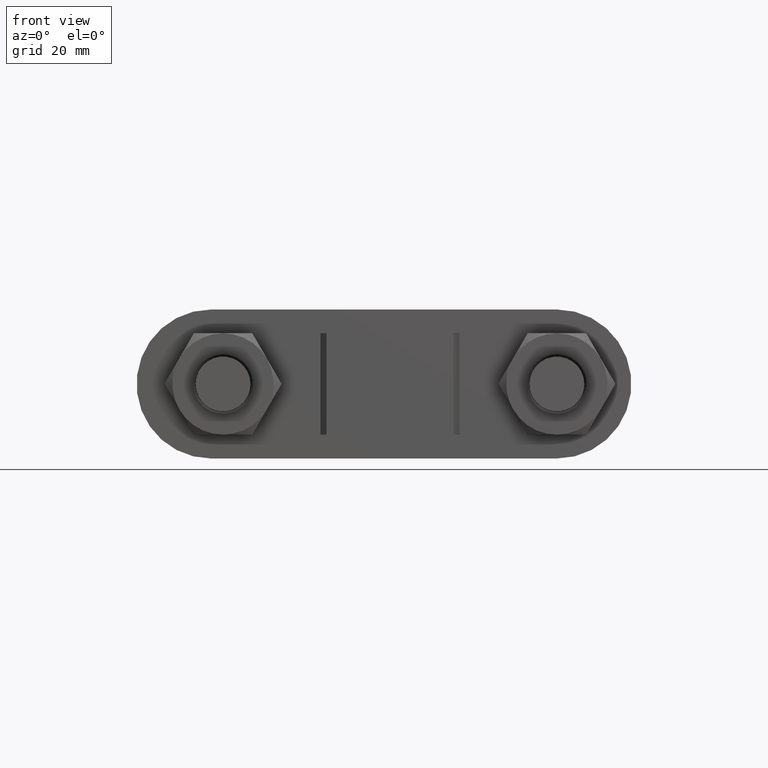
[diagram: clean part render]
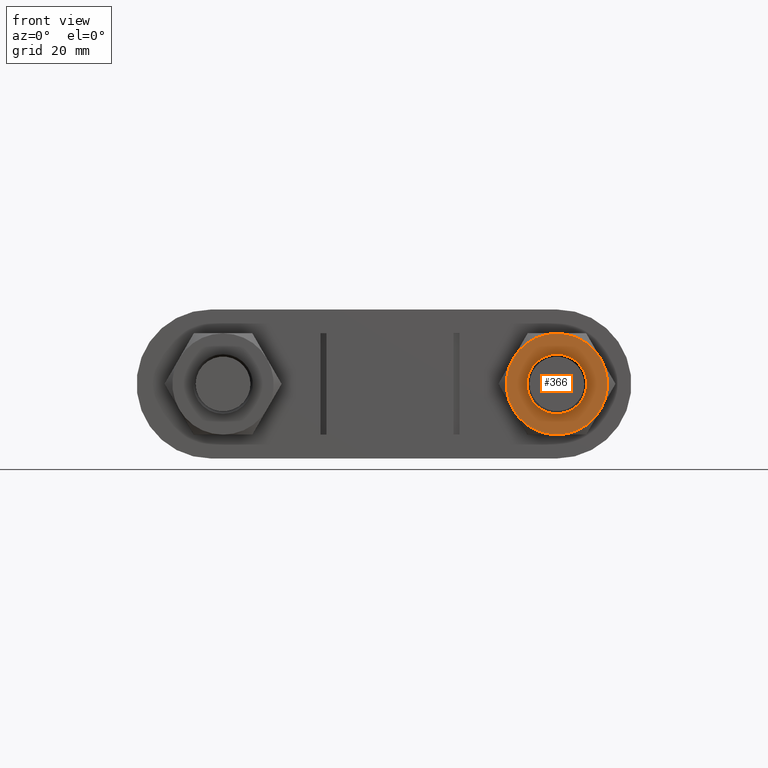
[diagram: same view with one face highlighted and labeled with its STEP entity id]
A machine part, front view. The second image highlights one B-rep face of the part: STEP entity #366.
In plain terms, the highlighted planar face has unit normal (0, 1, 0).
Its self-contained STEP definition (entity closure, byte-faithful):
#366 = ADVANCED_FACE( '', ( #605, #606 ), #607, .F. );
#605 = FACE_OUTER_BOUND( '', #1683, .T. );
#606 = FACE_BOUND( '', #1684, .T. );
#607 = PLANE( '', #1685 );
#1683 = EDGE_LOOP( '', ( #2430, #2431, #2432, #2433, #2434, #2435 ) );
#1684 = EDGE_LOOP( '', ( #2436 ) );
#1685 = AXIS2_PLACEMENT_3D( '', #2437, #2438, #2439 );
#2430 = ORIENTED_EDGE( '', *, *, #2734, .F. );
#2431 = ORIENTED_EDGE( '', *, *, #2740, .F. );
#2432 = ORIENTED_EDGE( '', *, *, #2715, .F. );
#2433 = ORIENTED_EDGE( '', *, *, #2731, .F. );
#2434 = ORIENTED_EDGE( '', *, *, #2701, .F. );
#2435 = ORIENTED_EDGE( '', *, *, #2741, .F. );
#2436 = ORIENTED_EDGE( '', *, *, #2742, .T. );
#2437 = CARTESIAN_POINT( '', ( 28.0000000000000, 17.0000000000004, 1.02254630544171E-015 ) );
#2438 = DIRECTION( '', ( 1.49966072182214E-032, 1.00000000000000, 6.12303176911190E-017 ) );
#2439 = DIRECTION( '', ( 1.00000000000000, 0.000000000000000, -2.44921270764475E-016 ) );
#2701 = EDGE_CURVE( '', #3056, #3058, #3059, .T. );
#2715 = EDGE_CURVE( '', #3077, #3084, #3085, .T. );
#2731 = EDGE_CURVE( '', #3058, #3077, #3112, .T. );
#2734 = EDGE_CURVE( '', #3116, #3117, #3118, .T. );
#2740 = EDGE_CURVE( '', #3084, #3116, #3126, .T. );
#2741 = EDGE_CURVE( '', #3117, #3056, #3127, .T. );
#2742 = EDGE_CURVE( '', #3128, #3128, #3129, .T. );
#3056 = VERTEX_POINT( '', #3835 );
#3058 = VERTEX_POINT( '', #3842 );
#3059 = CIRCLE( '', #3843, 8.49999999999852 );
#3077 = VERTEX_POINT( '', #3870 );
#3084 = VERTEX_POINT( '', #3889 );
#3085 = CIRCLE( '', #3890, 8.49999999999852 );
#3112 = CIRCLE( '', #3929, 8.49999999999852 );
#3116 = VERTEX_POINT( '', #3938 );
#3117 = VERTEX_POINT( '', #3939 );
#3118 = CIRCLE( '', #3940, 8.49999999999852 );
#3126 = CIRCLE( '', #3960, 8.49999999999852 );
#3127 = CIRCLE( '', #3961, 8.49999999999852 );
#3128 = VERTEX_POINT( '', #3962 );
#3129 = CIRCLE( '', #3963, 4.99999999999913 );
#3835 = CARTESIAN_POINT( '', ( 28.0000000000040, 17.0000000000004, 8.49999999999852 ) );
#3842 = CARTESIAN_POINT( '', ( 35.3612159321683, 17.0000000000004, 4.24999999999593 ) );
#3843 = AXIS2_PLACEMENT_3D( '', #4255, #4256, #4257 );
#3870 = CARTESIAN_POINT( '', ( 35.3612159321642, 17.0000000000003, -4.25000000000275 ) );
#3889 = CARTESIAN_POINT( '', ( 27.9999999999980, 17.0000000000004, -8.49999999999967 ) );
#3890 = AXIS2_PLACEMENT_3D( '', #4276, #4277, #4278 );
#3929 = AXIS2_PLACEMENT_3D( '', #4307, #4308, #4309 );
#3938 = CARTESIAN_POINT( '', ( 20.6387840678317, 17.0000000000004, -4.24999999999592 ) );
#3939 = CARTESIAN_POINT( '', ( 20.6387840678358, 17.0000000000003, 4.25000000000275 ) );
#3940 = AXIS2_PLACEMENT_3D( '', #4313, #4314, #4315 );
#3960 = AXIS2_PLACEMENT_3D( '', #4321, #4322, #4323 );
#3961 = AXIS2_PLACEMENT_3D( '', #4324, #4325, #4326 );
#3962 = CARTESIAN_POINT( '', ( 28.0000000000000, 17.0000000000004, 4.99999999999913 ) );
#3963 = AXIS2_PLACEMENT_3D( '', #4327, #4328, #4329 );
#4255 = CARTESIAN_POINT( '', ( 28.0000000000000, 17.0000000000004, 1.02254630544171E-015 ) );
#4256 = DIRECTION( '', ( 1.49966072182214E-032, 1.00000000000000, 6.12303176911190E-017 ) );
#4257 = DIRECTION( '', ( 0.000000000000000, -6.12303176911190E-017, 1.00000000000000 ) );
#4276 = CARTESIAN_POINT( '', ( 28.0000000000000, 17.0000000000004, 1.02254630544171E-015 ) );
#4277 = DIRECTION( '', ( 1.49966072182214E-032, 1.00000000000000, 6.12303176911190E-017 ) );
#4278 = DIRECTION( '', ( 0.000000000000000, -6.12303176911190E-017, 1.00000000000000 ) );
#4307 = CARTESIAN_POINT( '', ( 28.0000000000000, 17.0000000000004, 1.02254630544171E-015 ) );
#4308 = DIRECTION( '', ( 1.49966072182214E-032, 1.00000000000000, 6.12303176911190E-017 ) );
#4309 = DIRECTION( '', ( 0.000000000000000, -6.12303176911190E-017, 1.00000000000000 ) );
#4313 = CARTESIAN_POINT( '', ( 28.0000000000000, 17.0000000000004, 1.02254630544171E-015 ) );
#4314 = DIRECTION( '', ( 1.49966072182214E-032, 1.00000000000000, 6.12303176911190E-017 ) );
#4315 = DIRECTION( '', ( 0.000000000000000, -6.12303176911190E-017, 1.00000000000000 ) );
#4321 = CARTESIAN_POINT( '', ( 28.0000000000000, 17.0000000000004, 1.02254630544171E-015 ) );
#4322 = DIRECTION( '', ( 1.49966072182214E-032, 1.00000000000000, 6.12303176911190E-017 ) );
#4323 = DIRECTION( '', ( 0.000000000000000, -6.12303176911190E-017, 1.00000000000000 ) );
#4324 = CARTESIAN_POINT( '', ( 28.0000000000000, 17.0000000000004, 1.02254630544171E-015 ) );
#4325 = DIRECTION( '', ( 1.49966072182214E-032, 1.00000000000000, 6.12303176911190E-017 ) );
#4326 = DIRECTION( '', ( 0.000000000000000, -6.12303176911190E-017, 1.00000000000000 ) );
#4327 = CARTESIAN_POINT( '', ( 28.0000000000000, 17.0000000000004, 1.02254630544171E-015 ) );
#4328 = DIRECTION( '', ( 1.49966072182214E-032, 1.00000000000000, 6.12303176911190E-017 ) );
#4329 = DIRECTION( '', ( 0.000000000000000, -6.12303176911190E-017, 1.00000000000000 ) );